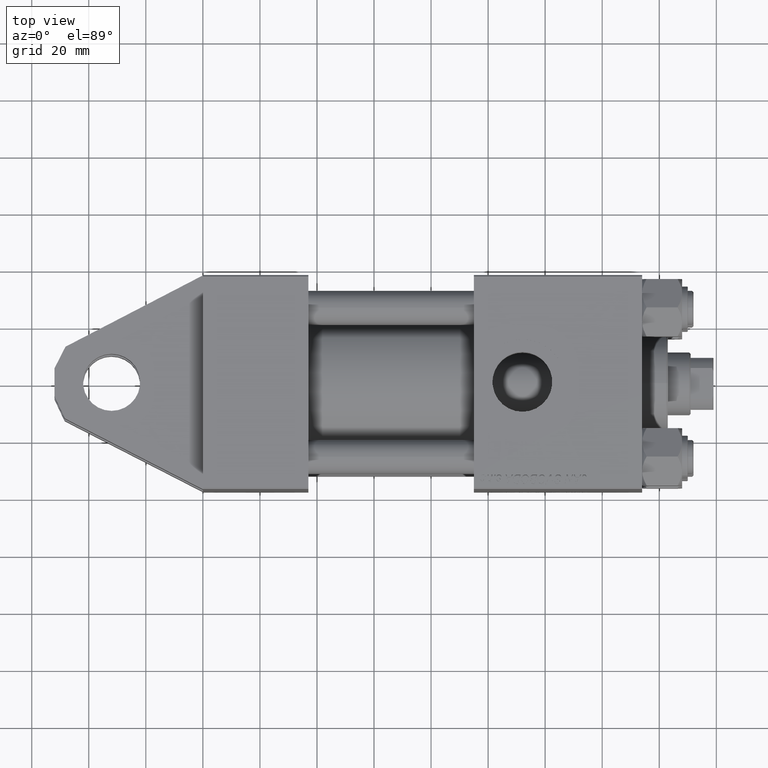
[diagram: clean part render]
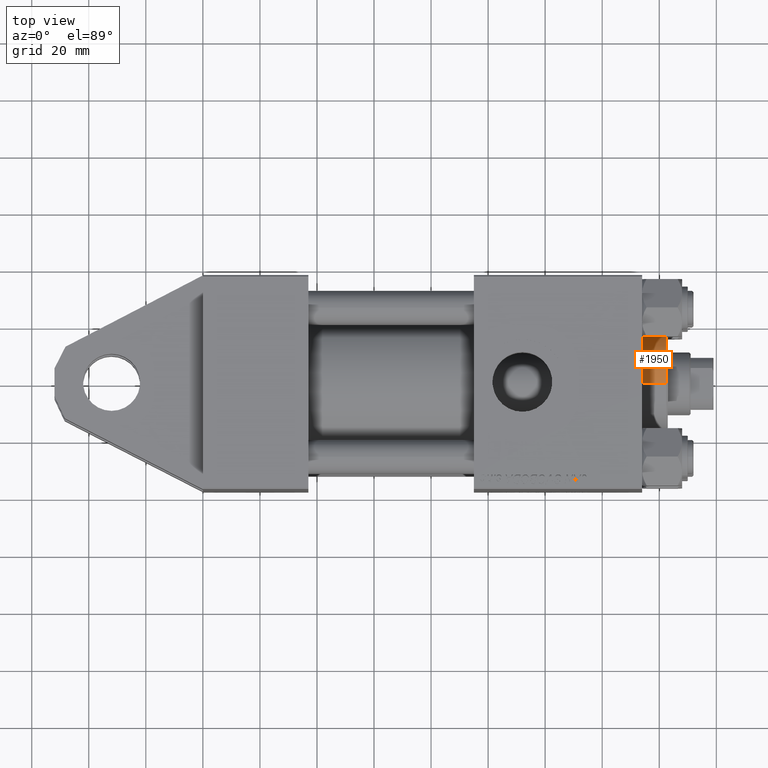
[diagram: same view with one face highlighted and labeled with its STEP entity id]
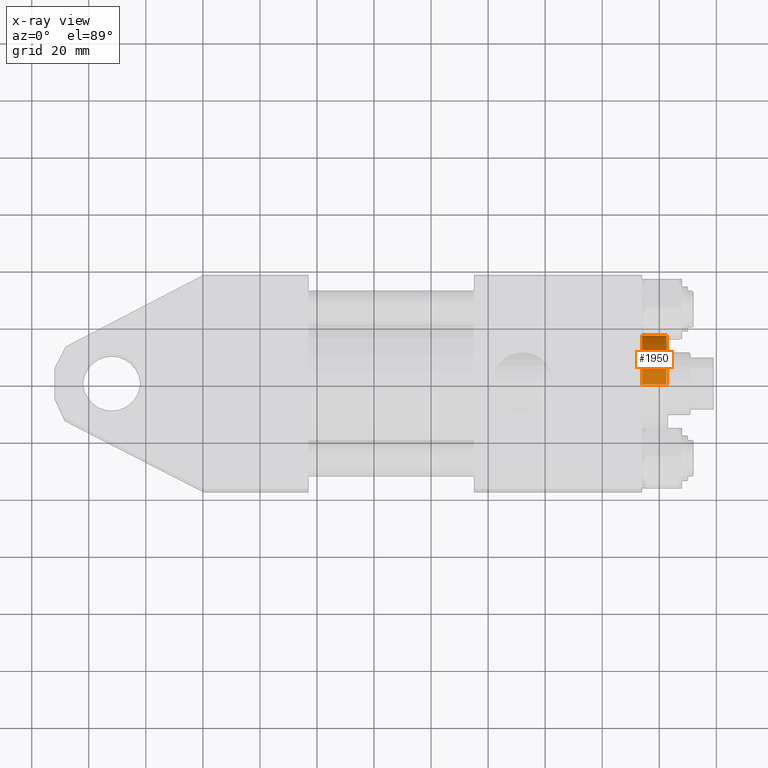
[diagram: x-ray of the same camera — body ghosted, the highlighted face saturated]
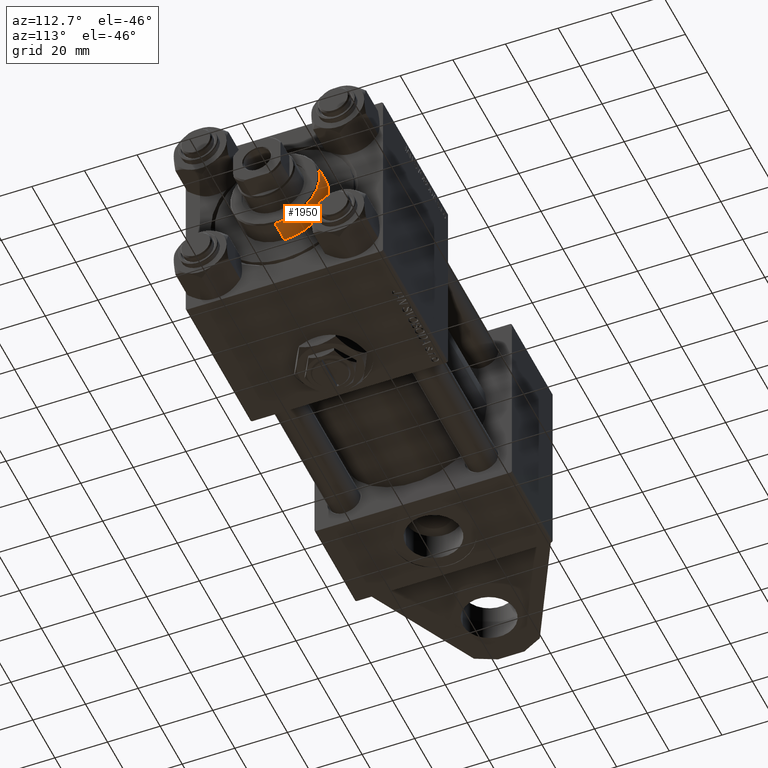
[diagram: same view with one face highlighted and labeled with its STEP entity id]
A machine part, top view. The second image highlights one B-rep face of the part: STEP entity #1950.
The next image is the same camera in x-ray: the body ghosted, the highlighted face saturated — about 4% of this face is hidden behind the body in this view.
A second angle (auxiliary view) of the same face is appended — the face is thin or edge-on in the first view.
In plain terms, the highlighted cylindrical surface (partial cylindrical patch) has radius 17 mm, axis along (-1, 0, 0).
Its self-contained STEP definition (entity closure, byte-faithful):
#1950 = ADVANCED_FACE ( 'NONE', ( #30285 ), #11026, .T. ) ;
#3074 = DIRECTION ( 'NONE',  ( 0.000000000000000000, 0.000000000000000000, 1.000000000000000000 ) ) ;
#3999 = CARTESIAN_POINT ( 'NONE',  ( 17.00000000000000000, 2.081899558550500280E-15, 28.69999999999999929 ) ) ;
#4824 = EDGE_CURVE ( 'NONE', #6997, #42688, #15323, .T. ) ;
#6984 = CARTESIAN_POINT ( 'NONE',  ( 0.000000000000000000, 0.000000000000000000, 28.69999999999999929 ) ) ;
#6997 = VERTEX_POINT ( 'NONE', #16886 ) ;
#9706 = ORIENTED_EDGE ( 'NONE', *, *, #4824, .T. ) ;
#11026 = CYLINDRICAL_SURFACE ( 'NONE', #23564, 17.00000000000000000 ) ;
#12712 = VECTOR ( 'NONE', #40184, 1000.000000000000000 ) ;
#14706 = ORIENTED_EDGE ( 'NONE', *, *, #50357, .T. ) ;
#15323 = CIRCLE ( 'NONE', #30296, 17.00000000000000000 ) ;
#16886 = CARTESIAN_POINT ( 'NONE',  ( -17.00000000000000000, 0.000000000000000000, 37.19999999999999574 ) ) ;
#17897 = DIRECTION ( 'NONE',  ( 0.000000000000000000, 0.000000000000000000, -1.000000000000000000 ) ) ;
#21962 = DIRECTION ( 'NONE',  ( -1.000000000000000000, 0.000000000000000000, 0.000000000000000000 ) ) ;
#22786 = CIRCLE ( 'NONE', #49328, 17.00000000000000000 ) ;
#23038 = LINE ( 'NONE', #43022, #48175 ) ;
#23564 = AXIS2_PLACEMENT_3D ( 'NONE', #46114, #41700, #21962 ) ;
#24273 = ORIENTED_EDGE ( 'NONE', *, *, #49648, .F. ) ;
#24312 = CARTESIAN_POINT ( 'NONE',  ( 17.00000000000000000, 2.081899558550500280E-15, 37.19999999999999574 ) ) ;
#27971 = EDGE_LOOP ( 'NONE', ( #9706, #35552, #14706, #24273 ) ) ;
#30285 = FACE_OUTER_BOUND ( 'NONE', #27971, .T. ) ;
#30296 = AXIS2_PLACEMENT_3D ( 'NONE', #37646, #17897, #34788 ) ;
#32660 = CARTESIAN_POINT ( 'NONE',  ( -17.00000000000000000, 0.000000000000000000, 37.69999999999999574 ) ) ;
#34788 = DIRECTION ( 'NONE',  ( 1.000000000000000000, 0.000000000000000000, 0.000000000000000000 ) ) ;
#35552 = ORIENTED_EDGE ( 'NONE', *, *, #39674, .T. ) ;
#36493 = CARTESIAN_POINT ( 'NONE',  ( -17.00000000000000000, 0.000000000000000000, 28.69999999999999929 ) ) ;
#36554 = VERTEX_POINT ( 'NONE', #3999 ) ;
#37646 = CARTESIAN_POINT ( 'NONE',  ( 0.000000000000000000, 0.000000000000000000, 37.19999999999999574 ) ) ;
#39674 = EDGE_CURVE ( 'NONE', #42688, #36554, #23038, .T. ) ;
#40184 = DIRECTION ( 'NONE',  ( -0.000000000000000000, -0.000000000000000000, -1.000000000000000000 ) ) ;
#40447 = LINE ( 'NONE', #32660, #12712 ) ;
#41700 = DIRECTION ( 'NONE',  ( -0.000000000000000000, -0.000000000000000000, -1.000000000000000000 ) ) ;
#42688 = VERTEX_POINT ( 'NONE', #24312 ) ;
#43022 = CARTESIAN_POINT ( 'NONE',  ( 17.00000000000000000, 2.081899558550500280E-15, 37.69999999999999574 ) ) ;
#43271 = DIRECTION ( 'NONE',  ( -0.000000000000000000, -0.000000000000000000, -1.000000000000000000 ) ) ;
#44374 = VERTEX_POINT ( 'NONE', #36493 ) ;
#46114 = CARTESIAN_POINT ( 'NONE',  ( 0.000000000000000000, 0.000000000000000000, 37.69999999999999574 ) ) ;
#46724 = DIRECTION ( 'NONE',  ( 1.000000000000000000, 0.000000000000000000, 0.000000000000000000 ) ) ;
#48175 = VECTOR ( 'NONE', #43271, 1000.000000000000000 ) ;
#49328 = AXIS2_PLACEMENT_3D ( 'NONE', #6984, #3074, #46724 ) ;
#49648 = EDGE_CURVE ( 'NONE', #6997, #44374, #40447, .T. ) ;
#50357 = EDGE_CURVE ( 'NONE', #36554, #44374, #22786, .T. ) ;